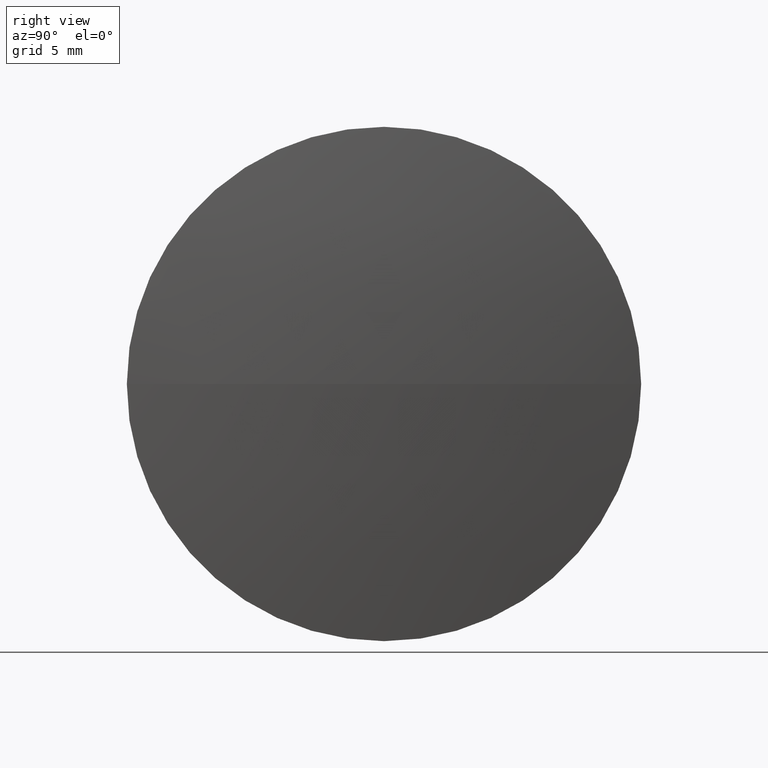
[diagram: clean part render]
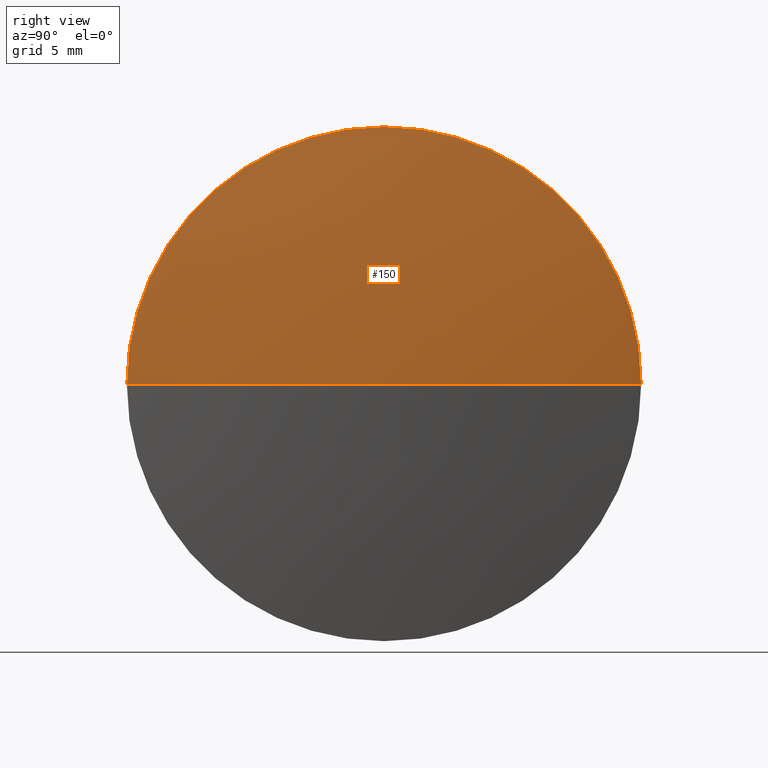
[diagram: same view with one face highlighted and labeled with its STEP entity id]
A machine part, right view. The second image highlights one B-rep face of the part: STEP entity #150.
In plain terms, the highlighted spherical surface has radius 91.0484 mm.
Its self-contained STEP definition (entity closure, byte-faithful):
#10 = DIRECTION ( 'NONE',  ( 0.0000000000000000000, 0.0000000000000000000, 1.000000000000000000 ) ) ;
#11 = DIRECTION ( 'NONE',  ( 0.0000000000000000000, 0.0000000000000000000, -1.000000000000000000 ) ) ;
#13 = DIRECTION ( 'NONE',  ( 0.0000000000000000000, 0.0000000000000000000, 1.000000000000000000 ) ) ;
#41 = CARTESIAN_POINT ( 'NONE',  ( 87.45786520323396500, 61.31611302318484000, 1.555301434917129800E-015 ) ) ;
#43 = VERTEX_POINT ( 'NONE', #41 ) ;
#56 = EDGE_CURVE ( 'NONE', #219, #43, #265, .T. ) ;
#59 = VERTEX_POINT ( 'NONE', #309 ) ;
#80 = DIRECTION ( 'NONE',  ( 0.0000000000000000000, -1.000000000000000000, -1.224646799147353200E-016 ) ) ;
#88 = AXIS2_PLACEMENT_3D ( 'NONE', #334, #11, #198 ) ;
#106 = AXIS2_PLACEMENT_3D ( 'NONE', #242, #296, #245 ) ;
#140 = CIRCLE ( 'NONE', #106, 12.69999999999999600 ) ;
#150 = ADVANCED_FACE ( 'NONE', ( #299 ), #340, .T. ) ;
#154 = DIRECTION ( 'NONE',  ( -1.000000000000000000, -0.0000000000000000000, -0.0000000000000000000 ) ) ;
#175 = ORIENTED_EDGE ( 'NONE', *, *, #56, .F. ) ;
#185 = ORIENTED_EDGE ( 'NONE', *, *, #272, .F. ) ;
#188 = DIRECTION ( 'NONE',  ( 0.0000000000000000000, -1.000000000000000000, 0.0000000000000000000 ) ) ;
#194 = ORIENTED_EDGE ( 'NONE', *, *, #324, .T. ) ;
#197 = AXIS2_PLACEMENT_3D ( 'NONE', #230, #154, #13 ) ;
#198 = DIRECTION ( 'NONE',  ( -1.000000000000000000, 0.0000000000000000000, 0.0000000000000000000 ) ) ;
#213 = AXIS2_PLACEMENT_3D ( 'NONE', #333, #10, #188 ) ;
#216 = CARTESIAN_POINT ( 'NONE',  ( 88.34795377466252800, 48.61611302318490900, 0.0000000000000000000 ) ) ;
#219 = VERTEX_POINT ( 'NONE', #294 ) ;
#224 = ORIENTED_EDGE ( 'NONE', *, *, #250, .F. ) ;
#230 = CARTESIAN_POINT ( 'NONE',  ( 87.45786520323396500, 48.61611302318478100, 0.0000000000000000000 ) ) ;
#242 = CARTESIAN_POINT ( 'NONE',  ( 87.45786520323396500, 48.61611302318478100, 0.0000000000000000000 ) ) ;
#245 = DIRECTION ( 'NONE',  ( 0.0000000000000000000, 0.0000000000000000000, 1.000000000000000000 ) ) ;
#250 = EDGE_CURVE ( 'NONE', #330, #59, #279, .T. ) ;
#252 = DIRECTION ( 'NONE',  ( 0.0000000000000000000, -1.224646799147353200E-016, 1.000000000000000000 ) ) ;
#265 = CIRCLE ( 'NONE', #197, 12.69999999999999600 ) ;
#272 = EDGE_CURVE ( 'NONE', #59, #219, #140, .T. ) ;
#277 = CARTESIAN_POINT ( 'NONE',  ( -2.700433356547117000, 48.61611302318491600, 0.0000000000000000000 ) ) ;
#279 = CIRCLE ( 'NONE', #88, 91.04838713120965100 ) ;
#294 = CARTESIAN_POINT ( 'NONE',  ( 87.45786520323396500, 48.61611302318478100, 12.69999999999999600 ) ) ;
#296 = DIRECTION ( 'NONE',  ( -1.000000000000000000, -0.0000000000000000000, -0.0000000000000000000 ) ) ;
#298 = CIRCLE ( 'NONE', #344, 91.04838713120965100 ) ;
#299 = FACE_OUTER_BOUND ( 'NONE', #339, .T. ) ;
#309 = CARTESIAN_POINT ( 'NONE',  ( 87.45786520323396500, 35.91611302318485600, 0.0000000000000000000 ) ) ;
#324 = EDGE_CURVE ( 'NONE', #330, #43, #298, .T. ) ;
#330 = VERTEX_POINT ( 'NONE', #216 ) ;
#333 = CARTESIAN_POINT ( 'NONE',  ( -2.700433356547117000, 48.61611302318491600, 0.0000000000000000000 ) ) ;
#334 = CARTESIAN_POINT ( 'NONE',  ( -2.700433356547117000, 48.61611302318491600, 0.0000000000000000000 ) ) ;
#339 = EDGE_LOOP ( 'NONE', ( #224, #194, #175, #185 ) ) ;
#340 = SPHERICAL_SURFACE ( 'NONE', #213, 91.04838713120965100 ) ;
#344 = AXIS2_PLACEMENT_3D ( 'NONE', #277, #252, #80 ) ;